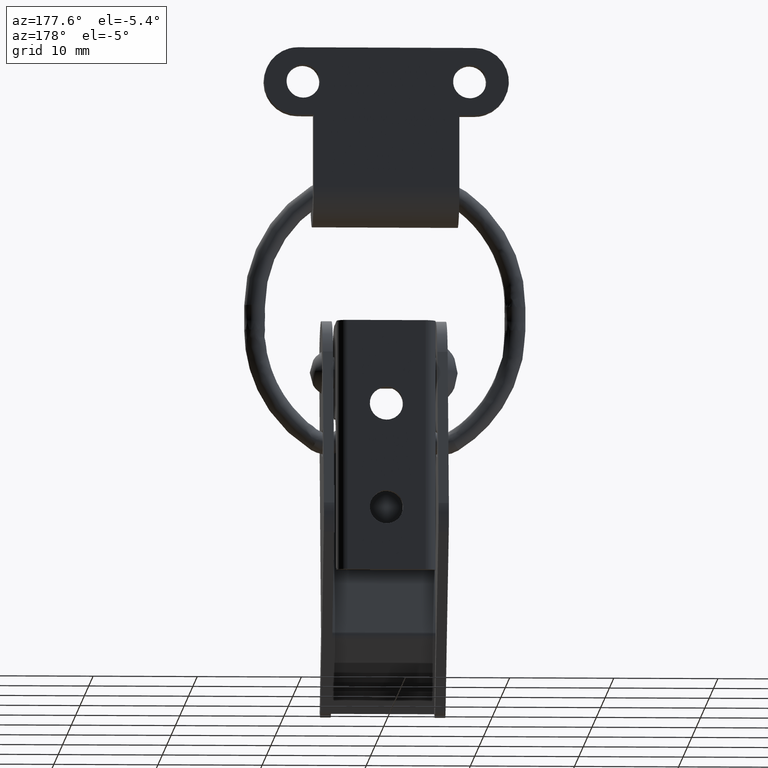
[diagram: clean part render]
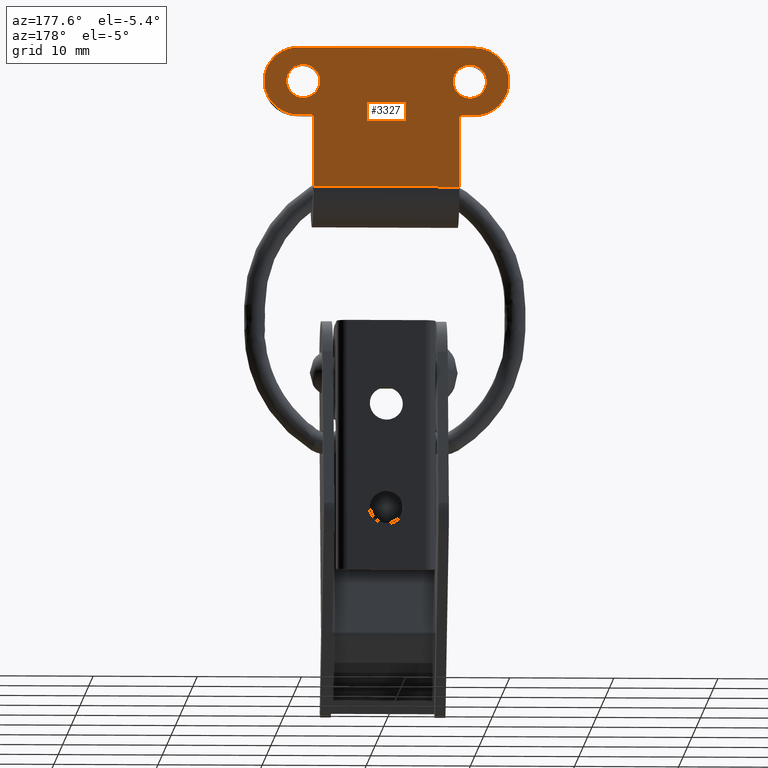
[diagram: same view with one face highlighted and labeled with its STEP entity id]
A machine part, auxiliary view. The second image highlights one B-rep face of the part: STEP entity #3327.
In plain terms, the highlighted face is a freeform B-spline surface patch.
Its self-contained STEP definition (entity closure, byte-faithful):
#2516=CARTESIAN_POINT('',(-8.0,6.500000000000000,29.100000000000001));
#2517=VERTEX_POINT('',#2516);
#2518=CARTESIAN_POINT('',(-9.595067733952394,6.500000000000000,27.625534553426430));
#2519=VERTEX_POINT('',#2518);
#2520=CARTESIAN_POINT('',(-8.0,6.500000000000000,29.100000000000001));
#2521=CARTESIAN_POINT('',(-9.479024786165978,6.500000000000000,29.100000000000005));
#2522=CARTESIAN_POINT('',(-9.595067733952394,6.500000000000001,27.625534553426430));
#2530=(BOUNDED_CURVE()B_SPLINE_CURVE(2,(#2520,#2521,#2522),.UNSPECIFIED.,.F.,.U.)B_SPLINE_CURVE_WITH_KNOTS((3,3),(0.0,0.236331300576478),.UNSPECIFIED.)CURVE()GEOMETRIC_REPRESENTATION_ITEM()RATIONAL_B_SPLINE_CURVE((1.0,0.723120658671144,0.969723356054344))REPRESENTATION_ITEM(''));
#2531=EDGE_CURVE('',#2517,#2519,#2530,.T.);
#2533=CARTESIAN_POINT('',(-6.404932266047606,6.500000000000000,27.374465446573570));
#2534=VERTEX_POINT('',#2533);
#2535=CARTESIAN_POINT('',(-6.404932266047606,6.500000000000001,27.374465446573566));
#2536=CARTESIAN_POINT('',(-6.400000000000001,6.500000000000000,27.437135828524628));
#2537=CARTESIAN_POINT('',(-6.400000000000000,6.500000000000000,27.500000000000000));
#2538=CARTESIAN_POINT('',(-6.400000000000000,6.500000000000001,29.100000000000005));
#2539=CARTESIAN_POINT('',(-8.0,6.500000000000000,29.100000000000001));
#2547=(BOUNDED_CURVE()B_SPLINE_CURVE(2,(#2535,#2536,#2537,#2538,#2539),.UNSPECIFIED.,.F.,.U.)B_SPLINE_CURVE_WITH_KNOTS((3,2,3),(0.736331300576477,0.750000000000000,1.0),.UNSPECIFIED.)CURVE()GEOMETRIC_REPRESENTATION_ITEM()RATIONAL_B_SPLINE_CURVE((0.969723356054343,0.983986122515403,1.0,0.707106781186548,1.0))REPRESENTATION_ITEM(''));
#2548=EDGE_CURVE('',#2534,#2517,#2547,.T.);
#2615=CARTESIAN_POINT('',(-8.0,6.500000000000000,25.899999999999999));
#2616=VERTEX_POINT('',#2615);
#2617=CARTESIAN_POINT('',(-9.595067733952394,6.500000000000001,27.625534553426430));
#2618=CARTESIAN_POINT('',(-9.600000000000001,6.499999999999999,27.562864171475368));
#2619=CARTESIAN_POINT('',(-9.600000000000001,6.500000000000000,27.500000000000000));
#2620=CARTESIAN_POINT('',(-9.600000000000001,6.500000000000001,25.899999999999999));
#2621=CARTESIAN_POINT('',(-8.0,6.500000000000000,25.899999999999999));
#2629=(BOUNDED_CURVE()B_SPLINE_CURVE(2,(#2617,#2618,#2619,#2620,#2621),.UNSPECIFIED.,.F.,.U.)B_SPLINE_CURVE_WITH_KNOTS((3,2,3),(0.236331300576478,0.250000000000000,0.500000000000000),.UNSPECIFIED.)CURVE()GEOMETRIC_REPRESENTATION_ITEM()RATIONAL_B_SPLINE_CURVE((0.969723356054344,0.983986122515404,1.0,0.707106781186548,1.0))REPRESENTATION_ITEM(''));
#2630=EDGE_CURVE('',#2519,#2616,#2629,.T.);
#2664=CARTESIAN_POINT('',(-8.0,6.500000000000000,25.899999999999999));
#2665=CARTESIAN_POINT('',(-6.520975213834024,6.500000000000000,25.899999999999999));
#2666=CARTESIAN_POINT('',(-6.404932266047606,6.500000000000001,27.374465446573563));
#2674=(BOUNDED_CURVE()B_SPLINE_CURVE(2,(#2664,#2665,#2666),.UNSPECIFIED.,.F.,.U.)B_SPLINE_CURVE_WITH_KNOTS((3,3),(0.500000000000000,0.736331300576478),.UNSPECIFIED.)CURVE()GEOMETRIC_REPRESENTATION_ITEM()RATIONAL_B_SPLINE_CURVE((1.0,0.723120658671144,0.969723356054344))REPRESENTATION_ITEM(''));
#2675=EDGE_CURVE('',#2616,#2534,#2674,.T.);
#2698=CARTESIAN_POINT('',(8.0,6.500000000000000,29.100000000000001));
#2699=VERTEX_POINT('',#2698);
#2700=CARTESIAN_POINT('',(6.404932266047606,6.500000000000000,27.625534553426430));
#2701=VERTEX_POINT('',#2700);
#2702=CARTESIAN_POINT('',(8.0,6.500000000000000,29.100000000000001));
#2703=CARTESIAN_POINT('',(6.520975213834024,6.500000000000000,29.100000000000005));
#2704=CARTESIAN_POINT('',(6.404932266047606,6.500000000000001,27.625534553426430));
#2712=(BOUNDED_CURVE()B_SPLINE_CURVE(2,(#2702,#2703,#2704),.UNSPECIFIED.,.F.,.U.)B_SPLINE_CURVE_WITH_KNOTS((3,3),(0.0,0.236331300576478),.UNSPECIFIED.)CURVE()GEOMETRIC_REPRESENTATION_ITEM()RATIONAL_B_SPLINE_CURVE((1.0,0.723120658671144,0.969723356054344))REPRESENTATION_ITEM(''));
#2713=EDGE_CURVE('',#2699,#2701,#2712,.T.);
#2715=CARTESIAN_POINT('',(9.595067733952394,6.500000000000000,27.374465446573570));
#2716=VERTEX_POINT('',#2715);
#2717=CARTESIAN_POINT('',(9.595067733952394,6.500000000000001,27.374465446573566));
#2718=CARTESIAN_POINT('',(9.600000000000001,6.500000000000000,27.437135828524628));
#2719=CARTESIAN_POINT('',(9.600000000000001,6.500000000000000,27.500000000000000));
#2720=CARTESIAN_POINT('',(9.600000000000001,6.500000000000001,29.100000000000005));
#2721=CARTESIAN_POINT('',(8.0,6.500000000000000,29.100000000000001));
#2729=(BOUNDED_CURVE()B_SPLINE_CURVE(2,(#2717,#2718,#2719,#2720,#2721),.UNSPECIFIED.,.F.,.U.)B_SPLINE_CURVE_WITH_KNOTS((3,2,3),(0.736331300576477,0.750000000000000,1.0),.UNSPECIFIED.)CURVE()GEOMETRIC_REPRESENTATION_ITEM()RATIONAL_B_SPLINE_CURVE((0.969723356054343,0.983986122515403,1.0,0.707106781186548,1.0))REPRESENTATION_ITEM(''));
#2730=EDGE_CURVE('',#2716,#2699,#2729,.T.);
#2797=CARTESIAN_POINT('',(8.0,6.500000000000000,25.899999999999999));
#2798=VERTEX_POINT('',#2797);
#2799=CARTESIAN_POINT('',(6.404932266047606,6.500000000000001,27.625534553426430));
#2800=CARTESIAN_POINT('',(6.400000000000001,6.500000000000000,27.562864171475368));
#2801=CARTESIAN_POINT('',(6.400000000000000,6.500000000000000,27.500000000000000));
#2802=CARTESIAN_POINT('',(6.400000000000000,6.500000000000001,25.899999999999999));
#2803=CARTESIAN_POINT('',(8.0,6.500000000000000,25.899999999999999));
#2811=(BOUNDED_CURVE()B_SPLINE_CURVE(2,(#2799,#2800,#2801,#2802,#2803),.UNSPECIFIED.,.F.,.U.)B_SPLINE_CURVE_WITH_KNOTS((3,2,3),(0.236331300576478,0.250000000000000,0.500000000000000),.UNSPECIFIED.)CURVE()GEOMETRIC_REPRESENTATION_ITEM()RATIONAL_B_SPLINE_CURVE((0.969723356054344,0.983986122515404,1.0,0.707106781186548,1.0))REPRESENTATION_ITEM(''));
#2812=EDGE_CURVE('',#2701,#2798,#2811,.T.);
#2846=CARTESIAN_POINT('',(8.0,6.500000000000000,25.899999999999999));
#2847=CARTESIAN_POINT('',(9.479024786165978,6.500000000000000,25.899999999999999));
#2848=CARTESIAN_POINT('',(9.595067733952394,6.500000000000001,27.374465446573563));
#2856=(BOUNDED_CURVE()B_SPLINE_CURVE(2,(#2846,#2847,#2848),.UNSPECIFIED.,.F.,.U.)B_SPLINE_CURVE_WITH_KNOTS((3,3),(0.500000000000000,0.736331300576478),.UNSPECIFIED.)CURVE()GEOMETRIC_REPRESENTATION_ITEM()RATIONAL_B_SPLINE_CURVE((1.0,0.723120658671144,0.969723356054344))REPRESENTATION_ITEM(''));
#2857=EDGE_CURVE('',#2798,#2716,#2856,.T.);
#3028=CARTESIAN_POINT('',(-7.0,6.500000000000000,24.250000000000000));
#3029=VERTEX_POINT('',#3028);
#3035=CARTESIAN_POINT('',(-7.0,6.499993999999910,17.349991000000198));
#3036=VERTEX_POINT('',#3035);
#3037=CARTESIAN_POINT('',(-7.0,6.499993999999910,17.349991000000198));
#3038=CARTESIAN_POINT('',(-7.0,6.500000000000000,24.250000000000000));
#3039=QUASI_UNIFORM_CURVE('',1,(#3037,#3038),.UNSPECIFIED.,.F.,.U.);
#3040=EDGE_CURVE('',#3036,#3029,#3039,.T.);
#3080=CARTESIAN_POINT('',(7.0,6.499993999999910,17.349991000000198));
#3081=VERTEX_POINT('',#3080);
#3097=CARTESIAN_POINT('',(7.0,6.500000000000000,24.250000000000000));
#3098=VERTEX_POINT('',#3097);
#3099=CARTESIAN_POINT('',(7.0,6.499993999999910,17.349991000000198));
#3100=CARTESIAN_POINT('',(7.0,6.500000000000000,24.250000000000000));
#3101=QUASI_UNIFORM_CURVE('',1,(#3099,#3100),.UNSPECIFIED.,.F.,.U.);
#3102=EDGE_CURVE('',#3081,#3098,#3101,.T.);
#3155=CARTESIAN_POINT('',(7.0,6.499993999999910,17.349991000000198));
#3156=CARTESIAN_POINT('',(-7.0,6.499993999999910,17.349991000000198));
#3157=QUASI_UNIFORM_CURVE('',1,(#3155,#3156),.UNSPECIFIED.,.F.,.U.);
#3158=EDGE_CURVE('',#3081,#3036,#3157,.T.);
#3250=CARTESIAN_POINT('',(-12.923824954452339,6.500000000000000,31.419330423578170));
#3251=CARTESIAN_POINT('',(12.923825584771549,6.500000000000000,31.419330423578170));
#3252=CARTESIAN_POINT('',(-12.923824954452339,6.500000000000000,16.680660217005769));
#3253=CARTESIAN_POINT('',(12.923825584771549,6.500000000000000,16.680660217005769));
#3254=B_SPLINE_SURFACE_WITH_KNOTS('',1,1,((#3250,#3252),(#3251,#3253)),.UNSPECIFIED.,.F.,.F.,.U.,(2,2),(2,2),(0.0,25.847650539223888),(0.0,14.738670206572399),.UNSPECIFIED.);
#3255=CARTESIAN_POINT('',(-8.500000170169601,6.500000000000000,30.750000000000000));
#3256=VERTEX_POINT('',#3255);
#3257=CARTESIAN_POINT('',(8.499999829830401,6.500000000000000,30.750000000000000));
#3258=VERTEX_POINT('',#3257);
#3259=CARTESIAN_POINT('',(-8.500000170169601,6.500000000000000,30.750000000000000));
#3260=CARTESIAN_POINT('',(8.499999829830401,6.500000000000000,30.750000000000000));
#3261=QUASI_UNIFORM_CURVE('',1,(#3259,#3260),.UNSPECIFIED.,.F.,.U.);
#3262=EDGE_CURVE('',#3256,#3258,#3261,.T.);
#3263=ORIENTED_EDGE('',*,*,#3262,.T.);
#3264=CARTESIAN_POINT('',(8.499999829830401,6.500000000000000,24.250000000000000));
#3265=VERTEX_POINT('',#3264);
#3266=CARTESIAN_POINT('',(8.499999829830403,6.500000000000000,24.250000000000000));
#3267=CARTESIAN_POINT('',(10.376388280327618,6.500000000000000,24.249999901752538));
#3268=CARTESIAN_POINT('',(11.314582533937831,6.500000000000000,25.874999950876269));
#3269=CARTESIAN_POINT('',(12.252776787548040,6.500000000000000,27.499999999999996));
#3270=CARTESIAN_POINT('',(11.314582533937831,6.500000000000000,29.125000049123731));
#3271=CARTESIAN_POINT('',(10.376388280327614,6.500000000000000,30.750000098247469));
#3272=CARTESIAN_POINT('',(8.499999829830401,6.500000000000000,30.750000000000000));
#3280=(BOUNDED_CURVE()B_SPLINE_CURVE(2,(#3266,#3267,#3268,#3269,#3270,#3271,#3272),.UNSPECIFIED.,.F.,.U.)B_SPLINE_CURVE_WITH_KNOTS((3,2,2,3),(0.0,0.333333333333333,0.666666666666667,1.0),.UNSPECIFIED.)CURVE()GEOMETRIC_REPRESENTATION_ITEM()RATIONAL_B_SPLINE_CURVE((1.0,0.866025395057792,1.0,0.866025395057792,1.0,0.866025395057792,1.0))REPRESENTATION_ITEM(''));
#3281=EDGE_CURVE('',#3265,#3258,#3280,.T.);
#3282=ORIENTED_EDGE('',*,*,#3281,.F.);
#3283=CARTESIAN_POINT('',(8.499999829830401,6.500000000000000,24.250000000000000));
#3284=CARTESIAN_POINT('',(7.0,6.500000000000000,24.250000000000000));
#3285=QUASI_UNIFORM_CURVE('',1,(#3283,#3284),.UNSPECIFIED.,.F.,.U.);
#3286=EDGE_CURVE('',#3265,#3098,#3285,.T.);
#3287=ORIENTED_EDGE('',*,*,#3286,.T.);
#3288=ORIENTED_EDGE('',*,*,#3102,.F.);
#3289=ORIENTED_EDGE('',*,*,#3158,.T.);
#3290=ORIENTED_EDGE('',*,*,#3040,.T.);
#3291=CARTESIAN_POINT('',(-8.500000000000000,6.500000000000000,24.250000000000000));
#3292=VERTEX_POINT('',#3291);
#3293=CARTESIAN_POINT('',(-7.0,6.500000000000000,24.250000000000000));
#3294=CARTESIAN_POINT('',(-8.500000000000000,6.500000000000000,24.250000000000000));
#3295=QUASI_UNIFORM_CURVE('',1,(#3293,#3294),.UNSPECIFIED.,.F.,.U.);
#3296=EDGE_CURVE('',#3029,#3292,#3295,.T.);
#3297=ORIENTED_EDGE('',*,*,#3296,.T.);
#3298=CARTESIAN_POINT('',(-8.500000170169601,6.500000000000000,30.750000000000000));
#3299=CARTESIAN_POINT('',(-11.750000085084794,6.500000000000003,30.749999829830401));
#3300=CARTESIAN_POINT('',(-11.750000000000000,6.500000000000000,27.499999914915200));
#3301=CARTESIAN_POINT('',(-11.749999914915206,6.500000000000003,24.250000000000000));
#3302=CARTESIAN_POINT('',(-8.500000000000000,6.500000000000000,24.250000000000000));
#3310=(BOUNDED_CURVE()B_SPLINE_CURVE(2,(#3298,#3299,#3300,#3301,#3302),.UNSPECIFIED.,.F.,.U.)B_SPLINE_CURVE_WITH_KNOTS((3,2,3),(0.0,0.500000000000000,1.0),.UNSPECIFIED.)CURVE()GEOMETRIC_REPRESENTATION_ITEM()RATIONAL_B_SPLINE_CURVE((1.0,0.707106790442554,1.0,0.707106790442554,1.0))REPRESENTATION_ITEM(''));
#3311=EDGE_CURVE('',#3256,#3292,#3310,.T.);
#3312=ORIENTED_EDGE('',*,*,#3311,.F.);
#3313=EDGE_LOOP('',(#3263,#3282,#3287,#3288,#3289,#3290,#3297,#3312));
#3314=FACE_OUTER_BOUND('',#3313,.T.);
#3315=ORIENTED_EDGE('',*,*,#2857,.T.);
#3316=ORIENTED_EDGE('',*,*,#2730,.T.);
#3317=ORIENTED_EDGE('',*,*,#2713,.T.);
#3318=ORIENTED_EDGE('',*,*,#2812,.T.);
#3319=EDGE_LOOP('',(#3315,#3316,#3317,#3318));
#3320=FACE_BOUND('',#3319,.T.);
#3321=ORIENTED_EDGE('',*,*,#2675,.T.);
#3322=ORIENTED_EDGE('',*,*,#2548,.T.);
#3323=ORIENTED_EDGE('',*,*,#2531,.T.);
#3324=ORIENTED_EDGE('',*,*,#2630,.T.);
#3325=EDGE_LOOP('',(#3321,#3322,#3323,#3324));
#3326=FACE_BOUND('',#3325,.T.);
#3327=ADVANCED_FACE('',(#3314,#3320,#3326),#3254,.T.);